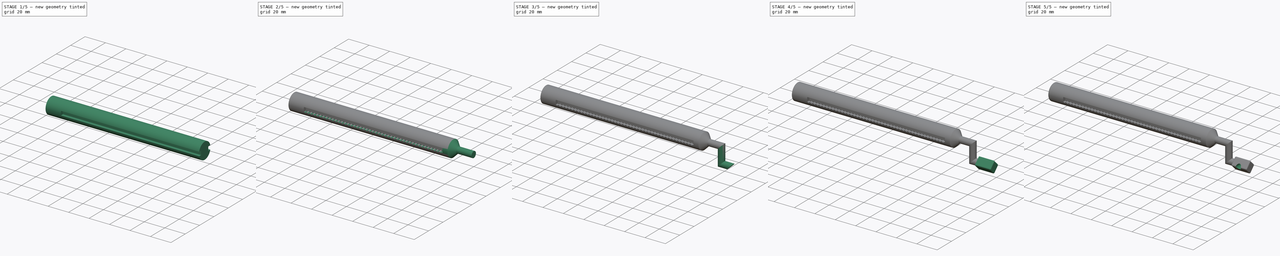
[diagram: build sequence overview — one tinted view per stage of 5, left to right]
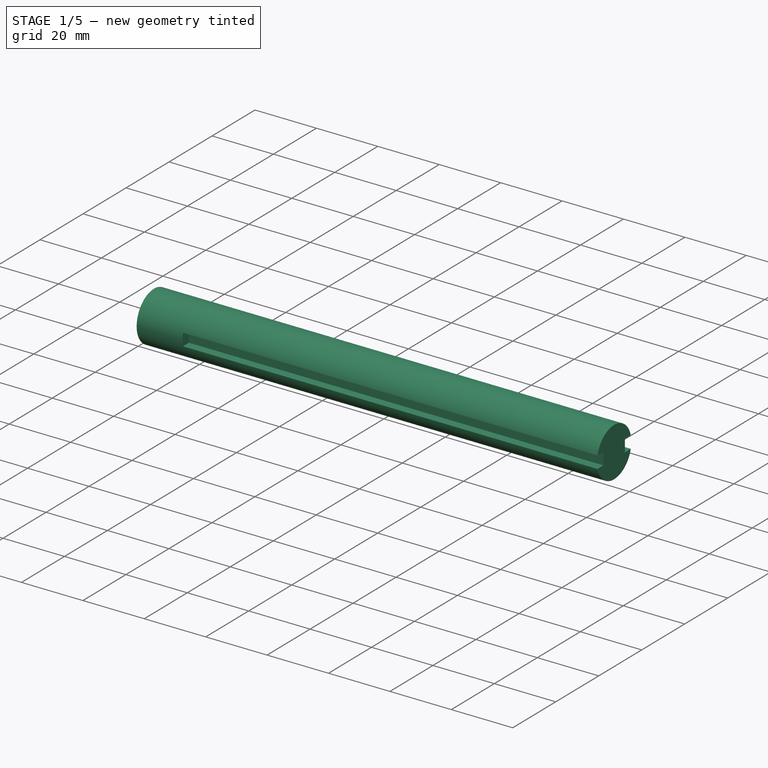
[diagram: stage 1 of 5 — iso view after this stage's code; geometry added in this stage tinted green]
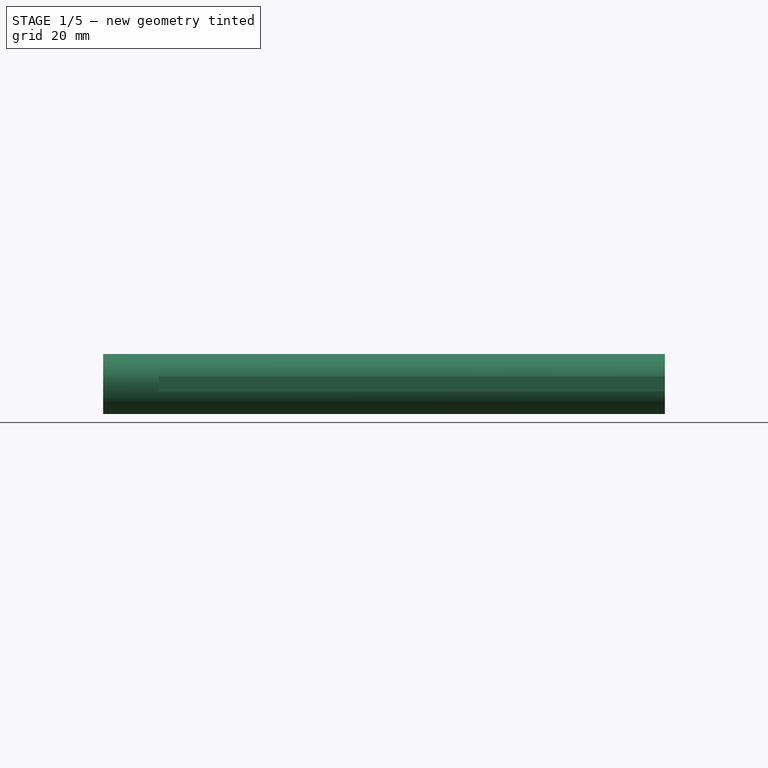
[diagram: stage 1 of 5 — front view after this stage's code; geometry added in this stage tinted green]
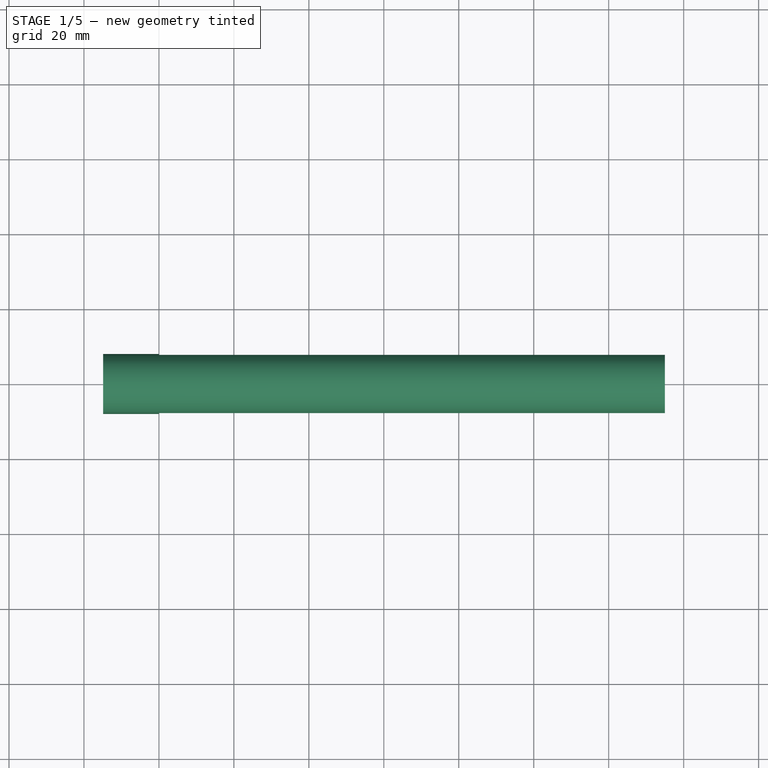
[diagram: stage 1 of 5 — top view after this stage's code; geometry added in this stage tinted green]
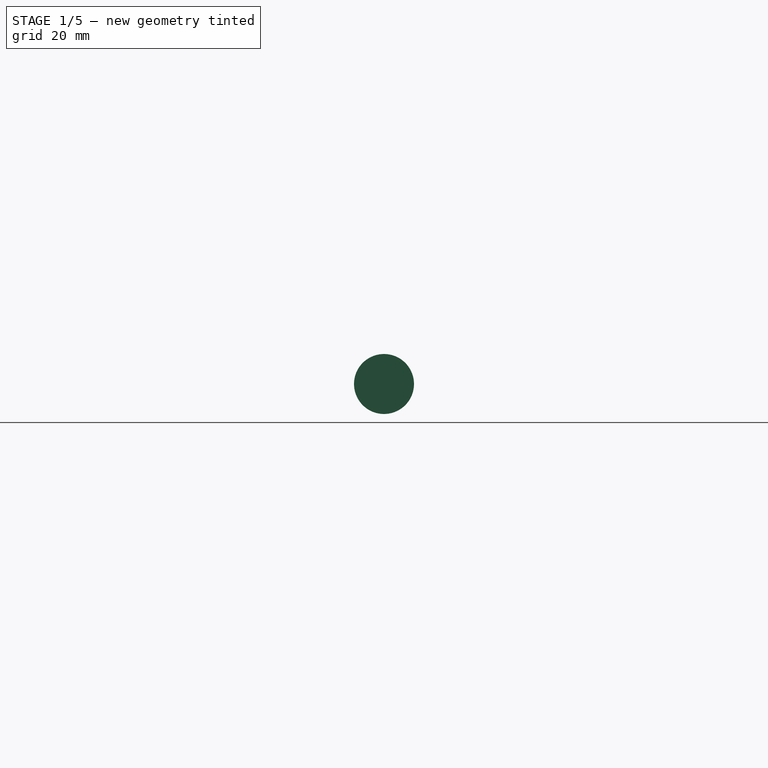
[diagram: stage 1 of 5 — right view after this stage's code; geometry added in this stage tinted green]
FCSTD DOCUMENT  (FreeCAD 1.0R38641 +468 (Git))
Label: probe-holder-shaft-03-001
License: All rights reserved
LicenseURL: http://en.wikipedia.org/wiki/All_rights_reserved
objects: Sketcher::SketchObject×9, PartDesign::Pad×9, PartDesign::Pocket×4, PartDesign::Fillet×3, PartDesign::Chamfer×1, PartDesign::Body×1
note: 70 computed .brp shape members not serialized (recipe doc carries the construction recipe); baked Part::Feature solids carry a one-line shape summary decoded from their .brp

FEATURE [Sketcher::SketchObject] Sketch
  ArcFitTolerance = 1e-06
  AttachmentSupport = -> [YZ_Plane]
  FullyConstrained = true
  MakeInternals = false
  MapMode = 5
  Placement = pos=(0,0,0) rot=(0.57735,0.57735,0.57735;2.0944rad)
  sketch-geometry (1):
    g0: Circle CenterX=0 CenterY=0 CenterZ=0 NormalX=0 NormalY=0 NormalZ=1 AngleXU=0 Radius=8
  constraints (2):
    c: Coincident(g0,g-1)
    c: Diameter(g0) = 16
FEATURE [PartDesign::Pad] Pad
  Direction = (1,0,0)
  Length = 135
  Length2 = 10
  Placement = pos=(0,0,0) rot=(1,1,1;2.0944rad)
  Profile = -> Sketch
  ReferenceAxis = -> Sketch [N_Axis]
  Refine = true
  Suppressed = false
  Type = 0
FEATURE [Sketcher::SketchObject] Sketch001
  ArcFitTolerance = 1e-06
  FullyConstrained = true
  MakeInternals = false
  MapMode = 5
  Placement = pos=(135,-3e-14,1.5e-14) rot=(0.57735,0.57735,0.57735;2.0944rad)
  sketch-geometry (8):
    g0: LineSegment StartX=-8 StartY=2 StartZ=0 EndX=-8 EndY=-2 EndZ=0
    g1: LineSegment StartX=-8 StartY=-2 StartZ=0 EndX=-5 EndY=-2 EndZ=0
    g2: LineSegment StartX=-5 StartY=-2 StartZ=0 EndX=-5 EndY=2 EndZ=0
    g3: LineSegment StartX=-5 StartY=2 StartZ=0 EndX=-8 EndY=2 EndZ=0
    g4: LineSegment StartX=5 StartY=2 StartZ=0 EndX=5 EndY=-2 EndZ=0
    g5: LineSegment StartX=5 StartY=-2 StartZ=0 EndX=8 EndY=-2 EndZ=0
    g6: LineSegment StartX=8 StartY=-2 StartZ=0 EndX=8 EndY=2 EndZ=0
    g7: LineSegment StartX=8 StartY=2 StartZ=0 EndX=5 EndY=2 EndZ=0
  constraints (23):
    c: Vertical(g2)
    c: Horizontal(g1)
    c: Horizontal(g3)
    c: Horizontal(g7)
    c: Horizontal(g5)
    c: Vertical(g4)
    c: DistanceX(g0) = -8
    c: DistanceY(g0,g0) = 4
    c: Symmetric(g0,g0,g-1)
    c: Symmetric(g6,g5,g-1)
    c: DistanceX(g5) = 8
    c: DistanceY(g6,g6) = 4
    c: Coincident(g6,g5)
    c: Coincident(g5,g4)
    c: DistanceX(g5,g5) = 3
    c: Coincident(g4,g7)
    c: Coincident(g7,g6)
    c: Coincident(g3,g0)
    c: Coincident(g2,g3)
    c: DistanceX(g3,g3) = 3
    c: DistanceY(g2,g2) = 4
    c: Coincident(g0,g1)
    c: DistanceX(g1,g1) = 3
FEATURE [PartDesign::Pocket] Pocket
  BaseFeature = -> Pad
  Direction = (-1,0,0)
  Length = 5
  Length2 = 5
  Placement = pos=(0,0,0) rot=(1,1,1;2.0944rad)
  Profile = -> Sketch001
  ReferenceAxis = -> Sketch001 [N_Axis]
  Refine = true
  Suppressed = false
  Type = 1
FEATURE [Sketcher::SketchObject] Sketch002
  ArcFitTolerance = 1e-06
  FullyConstrained = true
  MakeInternals = false
  MapMode = 5
  Placement = pos=(0,0,0) rot=(0.57735,0.57735,-0.57735;4.18879rad)
  sketch-geometry (1):
    g0: Circle CenterX=0 CenterY=0 CenterZ=0 NormalX=0 NormalY=0 NormalZ=1 AngleXU=0 Radius=8
  constraints (2):
    c: Diameter(g0) = 16
    c: Coincident(g0,g-1)
FEATURE [PartDesign::Pad] Pad001
  BaseFeature = -> Pocket
  Direction = (-1,0,0)
  Length = 14.9
  Length2 = 10
  Placement = pos=(0,0,0) rot=(1,1,1;2.0944rad)
  Profile = -> Sketch002
  ReferenceAxis = -> Sketch002 [N_Axis]
  Refine = true
  Suppressed = false
  Type = 0
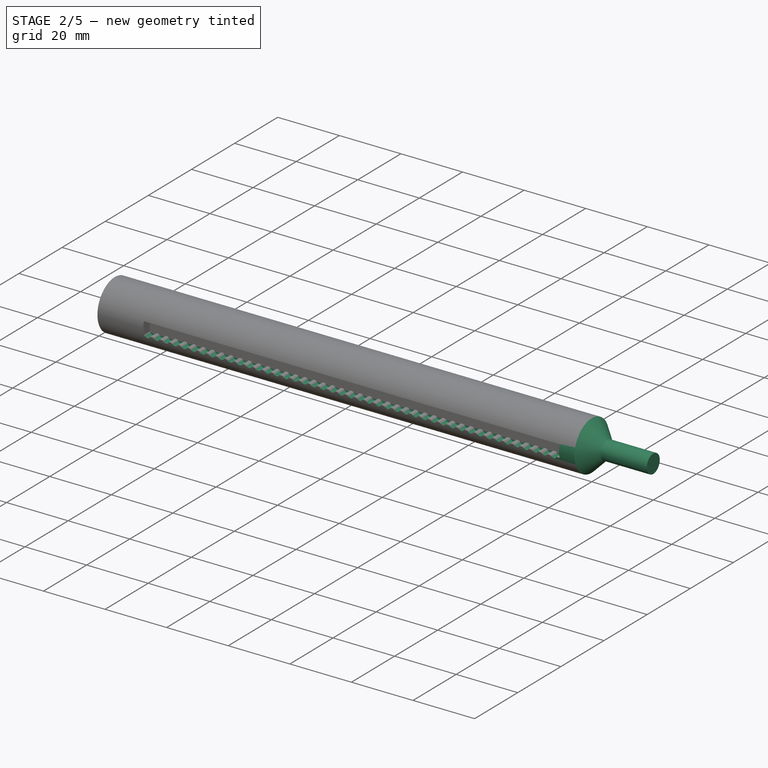
[diagram: stage 2 of 5 — iso view after this stage's code; geometry added in this stage tinted green]
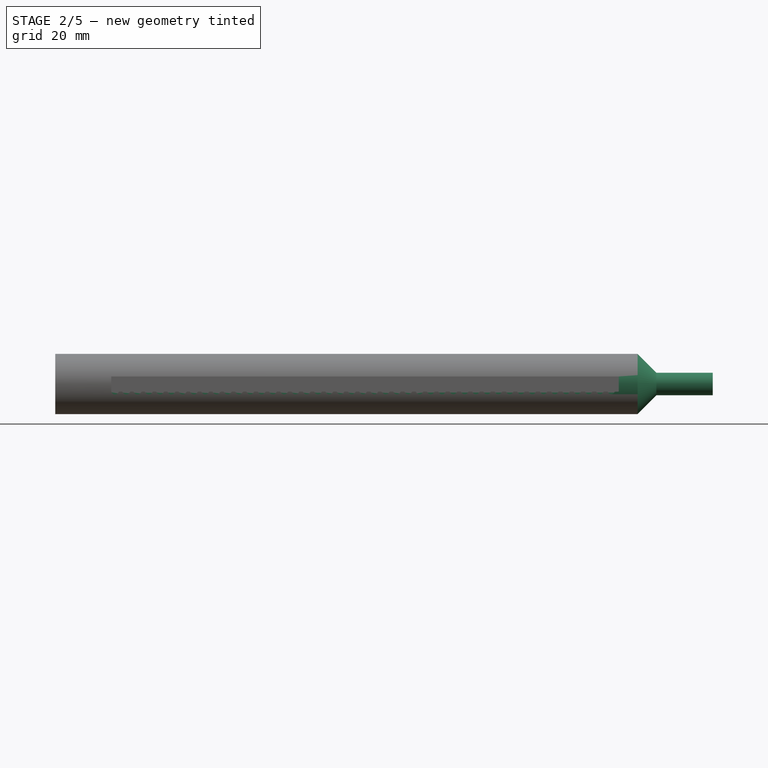
[diagram: stage 2 of 5 — front view after this stage's code; geometry added in this stage tinted green]
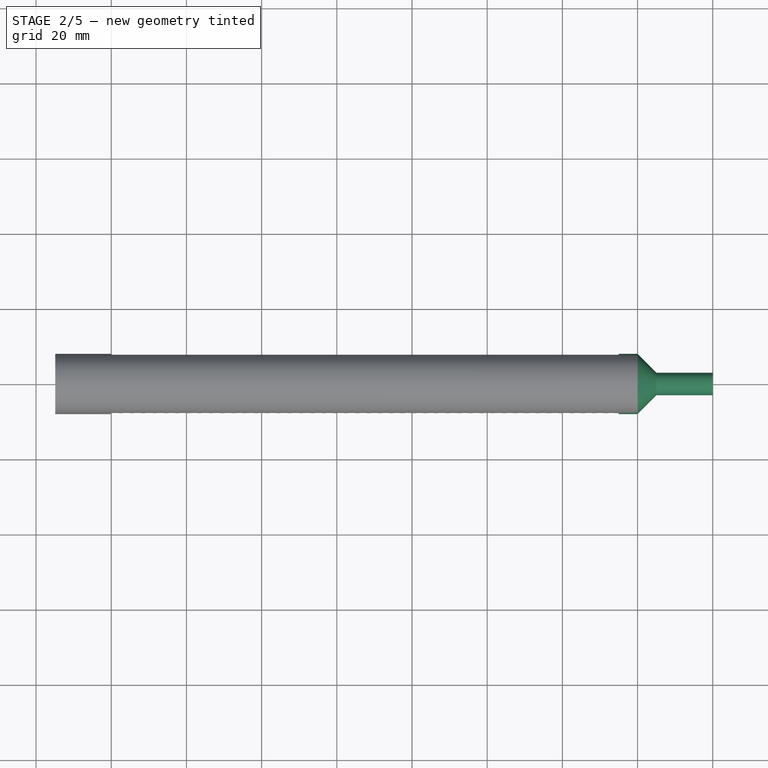
[diagram: stage 2 of 5 — top view after this stage's code; geometry added in this stage tinted green]
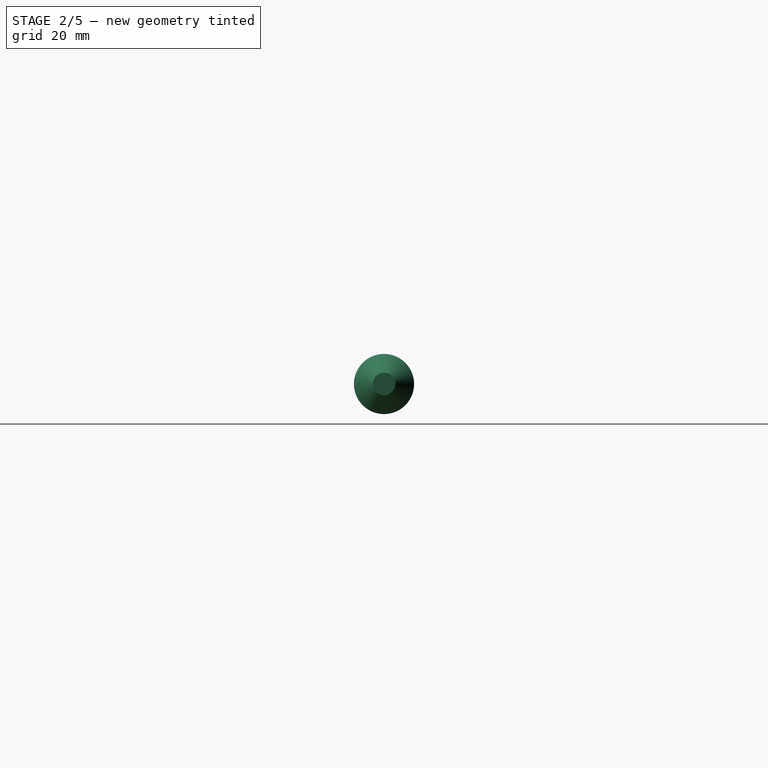
[diagram: stage 2 of 5 — right view after this stage's code; geometry added in this stage tinted green]
FEATURE [Sketcher::SketchObject] Sketch003
  ArcFitTolerance = 1e-06
  FullyConstrained = true
  MakeInternals = false
  MapMode = 5
  Placement = pos=(135,-8.99e-14,4.5e-14) rot=(0.57735,0.57735,0.57735;2.0944rad)
  sketch-geometry (1):
    g0: Circle CenterX=0 CenterY=0 CenterZ=0 NormalX=0 NormalY=0 NormalZ=1 AngleXU=0 Radius=8
  constraints (2):
    c: Coincident(g0,g-1)
    c: Diameter(g0) = 16
FEATURE [PartDesign::Pad] Pad002
  BaseFeature = -> Pad001
  Direction = (1,0,0)
  Length = 10
  Length2 = 10
  Placement = pos=(0,0,0) rot=(1,1,1;2.0944rad)
  Profile = -> Sketch003
  ReferenceAxis = -> Sketch003 [N_Axis]
  Refine = true
  Suppressed = false
  Type = 0
FEATURE [PartDesign::Chamfer] Chamfer
  Angle = 45
  Base = -> Pad002 [Face8]
  BaseFeature = -> Pad002
  ChamferType = 0
  FlipDirection = false
  Placement = pos=(0,0,0) rot=(1,1,1;2.0944rad)
  Refine = true
  Size = 5
  Size2 = 1
  SupportTransform = false
  Suppressed = false
  UseAllEdges = false
FEATURE [Sketcher::SketchObject] Sketch004
  ArcFitTolerance = 1e-06
  FullyConstrained = false
  MakeInternals = false
  MapMode = 5
  Placement = pos=(-1.1e-15,-5,5.6e-15) rot=(0.57735,0.57735,-0.57735;2.0944rad)
  sketch-geometry (92):
    g0: ArcOfCircle CenterX=1.8 CenterY=1 CenterZ=0 NormalX=0 NormalY=0 NormalZ=1 AngleXU=0 Radius=1 StartAngle=4.71239 EndAngle=7.33038
    g1: ArcOfCircle CenterX=1.8 CenterY=4 CenterZ=0 NormalX=0 NormalY=0 NormalZ=1 AngleXU=0 Radius=1 StartAngle=5.23599 EndAngle=7.33038
    g2: ArcOfCircle CenterX=2.61965 CenterY=2.5 CenterZ=0 NormalX=0 NormalY=0 NormalZ=1 AngleXU=0 Radius=0.71 StartAngle=2.0378 EndAngle=4.24539
    g3: ArcOfCircle CenterX=2.66662 CenterY=5.50103 CenterZ=0 NormalX=0 NormalY=0 NormalZ=1 AngleXU=0 Radius=0.733235 StartAngle=2.0944 EndAngle=4.18879
    g4: ArcOfCircle CenterX=1.8 CenterY=7 CenterZ=0 NormalX=0 NormalY=0 NormalZ=1 AngleXU=0 Radius=0.998224 StartAngle=5.23701 EndAngle=7.32936
    g5: ArcOfCircle CenterX=2.66662 CenterY=8.50103 CenterZ=0 NormalX=0 NormalY=0 NormalZ=1 AngleXU=0 Radius=0.735012 StartAngle=2.093 EndAngle=4.19019
    g6: ArcOfCircle CenterX=1.8 CenterY=10 CenterZ=0 NormalX=0 NormalY=0 NormalZ=1 AngleXU=0 Radius=0.99645 StartAngle=5.23805 EndAngle=7.32832
    g7: ArcOfCircle CenterX=2.66662 CenterY=11.501 CenterZ=0 NormalX=0 NormalY=0 NormalZ=1 AngleXU=0 Radius=0.73679 StartAngle=2.09161 EndAngle=4.19157
    g8: ArcOfCircle CenterX=1.8 CenterY=13 CenterZ=0 NormalX=0 NormalY=0 NormalZ=1 AngleXU=0 Radius=0.994677 StartAngle=5.23908 EndAngle=7.32729
    g9: ArcOfCircle CenterX=2.66662 CenterY=14.501 CenterZ=0 NormalX=0 NormalY=0 NormalZ=1 AngleXU=0 Radius=0.738569 StartAngle=2.09023 EndAngle=4.19296
    g10: ArcOfCircle CenterX=1.8 CenterY=16 CenterZ=0 NormalX=0 NormalY=0 NormalZ=1 AngleXU=0 Radius=0.992904 StartAngle=5.24012 EndAngle=7.32625
    g11: ArcOfCircle CenterX=2.66662 CenterY=17.501 CenterZ=0 NormalX=0 NormalY=0 NormalZ=1 AngleXU=0 Radius=0.74035 StartAngle=2.08885 EndAngle=4.19433
    g12: ArcOfCircle CenterX=1.8 CenterY=19 CenterZ=0 NormalX=0 NormalY=0 NormalZ=1 AngleXU=0 Radius=0.991133 StartAngle=5.24116 EndAngle=7.32521
    g13: ArcOfCircle CenterX=2.66662 CenterY=20.501 CenterZ=0 NormalX=0 NormalY=0 NormalZ=1 AngleXU=0 Radius=0.742133 StartAngle=2.08749 EndAngle=4.1957
    g14: ArcOfCircle CenterX=1.8 CenterY=22 CenterZ=0 NormalX=0 NormalY=0 NormalZ=1 AngleXU=0 Radius=0.989363 StartAngle=5.24221 EndAngle=7.32416
    g15: ArcOfCircle CenterX=2.66662 CenterY=23.501 CenterZ=0 NormalX=0 NormalY=0 NormalZ=1 AngleXU=0 Radius=0.743917 StartAngle=2.08612 EndAngle=4.19706
    g16: ArcOfCircle CenterX=1.8 CenterY=25 CenterZ=0 NormalX=0 NormalY=0 NormalZ=1 AngleXU=0 Radius=0.987594 StartAngle=5.24326 EndAngle=7.32311
    g17: ArcOfCircle CenterX=2.66662 CenterY=26.501 CenterZ=0 NormalX=0 NormalY=0 NormalZ=1 AngleXU=0 Radius=0.745702 StartAngle=2.08477 EndAngle=4.19842
    g18: ArcOfCircle CenterX=1.8 CenterY=28 CenterZ=0 NormalX=0 NormalY=0 NormalZ=1 AngleXU=0 Radius=0.985826 StartAngle=5.24431 EndAngle=7.32206
    g19: ArcOfCircle CenterX=2.66662 CenterY=29.501 CenterZ=0 NormalX=0 NormalY=0 NormalZ=1 AngleXU=0 Radius=0.747488 StartAngle=2.08342 EndAngle=4.19976
    g20: ArcOfCircle CenterX=1.8 CenterY=31 CenterZ=0 NormalX=0 NormalY=0 NormalZ=1 AngleXU=0 Radius=0.984059 StartAngle=5.24537 EndAngle=7.321
    g21: ArcOfCircle CenterX=2.66662 CenterY=32.501 CenterZ=0 NormalX=0 NormalY=0 NormalZ=1 AngleXU=0 Radius=0.749276 StartAngle=2.08208 EndAngle=4.20111
    g22: ArcOfCircle CenterX=1.8 CenterY=34 CenterZ=0 NormalX=0 NormalY=0 NormalZ=1 AngleXU=0 Radius=0.982293 StartAngle=5.24643 EndAngle=7.31994
    g23: ArcOfCircle CenterX=2.66662 CenterY=35.501 CenterZ=0 NormalX=0 NormalY=0 NormalZ=1 AngleXU=0 Radius=0.751065 StartAngle=2.08074 EndAngle=4.20244
    g24: ArcOfCircle CenterX=1.8 CenterY=37 CenterZ=0 NormalX=0 NormalY=0 NormalZ=1 AngleXU=0 Radius=0.980528 StartAngle=5.24749 EndAngle=7.31888
    g25: ArcOfCircle CenterX=2.66662 CenterY=38.501 CenterZ=0 NormalX=0 NormalY=0 NormalZ=1 AngleXU=0 Radius=0.752856 StartAngle=2.07941 EndAngle=4.20377
    g26: ArcOfCircle CenterX=1.8 CenterY=40 CenterZ=0 NormalX=0 NormalY=0 NormalZ=1 AngleXU=0 Radius=0.978765 StartAngle=5.24856 EndAngle=7.31781
    g27: ArcOfCircle CenterX=2.66662 CenterY=41.501 CenterZ=0 NormalX=0 NormalY=0 NormalZ=1 AngleXU=0 Radius=0.754648 StartAngle=2.07809 EndAngle=4.2051
    g28: ArcOfCircle CenterX=1.8 CenterY=43 CenterZ=0 NormalX=0 NormalY=0 NormalZ=1 AngleXU=0 Radius=0.977002 StartAngle=5.24963 EndAngle=7.31674
    g29: ArcOfCircle CenterX=2.66662 CenterY=44.501 CenterZ=0 NormalX=0 NormalY=0 NormalZ=1 AngleXU=0 Radius=0.756441 StartAngle=2.07677 EndAngle=4.20641
    g30: ArcOfCircle CenterX=1.8 CenterY=46 CenterZ=0 NormalX=0 NormalY=0 NormalZ=1 AngleXU=0 Radius=0.975241 StartAngle=5.25071 EndAngle=7.31566
    g31: ArcOfCircle CenterX=2.66662 CenterY=47.501 CenterZ=0 NormalX=0 NormalY=0 NormalZ=1 AngleXU=0 Radius=0.758235 StartAngle=2.07546 EndAngle=4.20772
    g32: ArcOfCircle CenterX=1.8 CenterY=49 CenterZ=0 NormalX=0 NormalY=0 NormalZ=1 AngleXU=0 Radius=0.973481 StartAngle=5.25179 EndAngle=7.31458
    g33: ArcOfCircle CenterX=2.66662 CenterY=50.501 CenterZ=0 NormalX=0 NormalY=0 NormalZ=1 AngleXU=0 Radius=0.760031 StartAngle=2.07416 EndAngle=4.20903
    g34: ArcOfCircle CenterX=1.8 CenterY=52 CenterZ=0 NormalX=0 NormalY=0 NormalZ=1 AngleXU=0 Radius=0.971722 StartAngle=5.25287 EndAngle=7.3135
    g35: ArcOfCircle CenterX=2.66662 CenterY=53.501 CenterZ=0 NormalX=0 NormalY=0 NormalZ=1 AngleXU=0 Radius=0.761828 StartAngle=2.07286 EndAngle=4.21033
    g36: ArcOfCircle CenterX=1.8 CenterY=55 CenterZ=0 NormalX=0 NormalY=0 NormalZ=1 AngleXU=0 Radius=0.969964 StartAngle=5.25396 EndAngle=7.31241
    g37: ArcOfCircle CenterX=2.66662 CenterY=56.501 CenterZ=0 NormalX=0 NormalY=0 NormalZ=1 AngleXU=0 Radius=0.763627 StartAngle=2.07157 EndAngle=4.21162
    g38: ArcOfCircle CenterX=1.8 CenterY=58 CenterZ=0 NormalX=0 NormalY=0 NormalZ=1 AngleXU=0 Radius=0.968207 StartAngle=5.25505 EndAngle=7.31132
    g39: ArcOfCircle CenterX=2.66662 CenterY=59.501 CenterZ=0 NormalX=0 NormalY=0 NormalZ=1 AngleXU=0 Radius=0.765426 StartAngle=2.07028 EndAngle=4.21291
    g40: ArcOfCircle CenterX=1.8 CenterY=61 CenterZ=0 NormalX=0 NormalY=0 NormalZ=1 AngleXU=0 Radius=0.966451 StartAngle=5.25615 EndAngle=7.31022
    g41: ArcOfCircle CenterX=2.66662 CenterY=62.501 CenterZ=0 NormalX=0 NormalY=0 NormalZ=1 AngleXU=0 Radius=0.767227 StartAngle=2.069 EndAngle=4.21419
    g42: ArcOfCircle CenterX=1.8 CenterY=64 CenterZ=0 NormalX=0 NormalY=0 NormalZ=1 AngleXU=0 Radius=0.964697 StartAngle=5.25725 EndAngle=7.30912
    g43: ArcOfCircle CenterX=2.66662 CenterY=65.501 CenterZ=0 NormalX=0 NormalY=0 NormalZ=1 AngleXU=0 Radius=0.769029 StartAngle=2.06772 EndAngle=4.21546
    g44: ArcOfCircle CenterX=1.8 CenterY=67 CenterZ=0 NormalX=0 NormalY=0 NormalZ=1 AngleXU=0 Radius=0.962944 StartAngle=5.25835 EndAngle=7.30802
    g45: ArcOfCircle CenterX=2.66662 CenterY=68.501 CenterZ=0 NormalX=0 NormalY=0 NormalZ=1 AngleXU=0 Radius=0.770833 StartAngle=2.06646 EndAngle=4.21673
    g46: ArcOfCircle CenterX=1.8 CenterY=70 CenterZ=0 NormalX=0 NormalY=0 NormalZ=1 AngleXU=0 Radius=0.961192 StartAngle=5.25946 EndAngle=7.30691
    g47: ArcOfCircle CenterX=2.66662 CenterY=71.501 CenterZ=0 NormalX=0 NormalY=0 NormalZ=1 AngleXU=0 Radius=0.772637 StartAngle=2.06519 EndAngle=4.21799
    g48: ArcOfCircle CenterX=1.8 CenterY=73 CenterZ=0 NormalX=0 NormalY=0 NormalZ=1 AngleXU=0 Radius=0.959441 StartAngle=5.26057 EndAngle=7.3058
    g49: ArcOfCircle CenterX=2.66662 CenterY=74.501 CenterZ=0 NormalX=0 NormalY=0 NormalZ=1 AngleXU=0 Radius=0.774443 StartAngle=2.06394 EndAngle=4.21925
    g50: ArcOfCircle CenterX=1.8 CenterY=76 CenterZ=0 NormalX=0 NormalY=0 NormalZ=1 AngleXU=0 Radius=0.957691 StartAngle=5.26169 EndAngle=7.30468
    g51: ArcOfCircle CenterX=2.66662 CenterY=77.501 CenterZ=0 NormalX=0 NormalY=0 NormalZ=1 AngleXU=0 Radius=0.77625 StartAngle=2.06269 EndAngle=4.2205
    g52: ArcOfCircle CenterX=1.8 CenterY=79 CenterZ=0 NormalX=0 NormalY=0 NormalZ=1 AngleXU=0 Radius=0.955942 StartAngle=5.26281 EndAngle=7.30356
    g53: ArcOfCircle CenterX=2.66662 CenterY=80.501 CenterZ=0 NormalX=0 NormalY=0 NormalZ=1 AngleXU=0 Radius=0.778059 StartAngle=2.06144 EndAngle=4.22174
    g54: ArcOfCircle CenterX=1.8 CenterY=82 CenterZ=0 NormalX=0 NormalY=0 NormalZ=1 AngleXU=0 Radius=0.954195 StartAngle=5.26393 EndAngle=7.30244
    g55: ArcOfCircle CenterX=2.66662 CenterY=83.501 CenterZ=0 NormalX=0 NormalY=0 NormalZ=1 AngleXU=0 Radius=0.779868 StartAngle=2.0602 EndAngle=4.22298
    g56: ArcOfCircle CenterX=1.8 CenterY=85 CenterZ=0 NormalX=0 NormalY=0 NormalZ=1 AngleXU=0 Radius=0.952449 StartAngle=5.26506 EndAngle=7.30131
    g57: ArcOfCircle CenterX=2.66662 CenterY=86.501 CenterZ=0 NormalX=0 NormalY=0 NormalZ=1 AngleXU=0 Radius=0.781679 StartAngle=2.05897 EndAngle=4.22422
    g58: ArcOfCircle CenterX=1.8 CenterY=88 CenterZ=0 NormalX=0 NormalY=0 NormalZ=1 AngleXU=0 Radius=0.950704 StartAngle=5.26619 EndAngle=7.30018
    g59: ArcOfCircle CenterX=2.66662 CenterY=89.501 CenterZ=0 NormalX=0 NormalY=0 NormalZ=1 AngleXU=0 Radius=0.783491 StartAngle=2.05774 EndAngle=4.22544
    g60: ArcOfCircle CenterX=1.8 CenterY=91 CenterZ=0 NormalX=0 NormalY=0 NormalZ=1 AngleXU=0 Radius=0.948961 StartAngle=5.26733 EndAngle=7.29904
    g61: ArcOfCircle CenterX=2.66662 CenterY=92.501 CenterZ=0 NormalX=0 NormalY=0 NormalZ=1 AngleXU=0 Radius=0.785304 StartAngle=2.05652 EndAngle=4.22667
    g62: ArcOfCircle CenterX=1.8 CenterY=94 CenterZ=0 NormalX=0 NormalY=0 NormalZ=1 AngleXU=0 Radius=0.947218 StartAngle=5.26847 EndAngle=7.2979
    g63: ArcOfCircle CenterX=2.66662 CenterY=95.501 CenterZ=0 NormalX=0 NormalY=0 NormalZ=1 AngleXU=0 Radius=0.787118 StartAngle=2.0553 EndAngle=4.22788
    g64: ArcOfCircle CenterX=1.8 CenterY=97 CenterZ=0 NormalX=0 NormalY=0 NormalZ=1 AngleXU=0 Radius=0.945477 StartAngle=5.26961 EndAngle=7.29676
    g65: ArcOfCircle CenterX=2.66662 CenterY=98.501 CenterZ=0 NormalX=0 NormalY=0 NormalZ=1 AngleXU=0 Radius=0.788933 StartAngle=2.05409 EndAngle=4.22909
    g66: ArcOfCircle CenterX=1.8 CenterY=100 CenterZ=0 NormalX=0 NormalY=0 NormalZ=1 AngleXU=0 Radius=0.943737 StartAngle=5.27076 EndAngle=7.29561
    g67: ArcOfCircle CenterX=2.66662 CenterY=101.501 CenterZ=0 NormalX=0 NormalY=0 NormalZ=1 AngleXU=0 Radius=0.79075 StartAngle=2.05289 EndAngle=4.2303
    g68: ArcOfCircle CenterX=1.8 CenterY=103 CenterZ=0 NormalX=0 NormalY=0 NormalZ=1 AngleXU=0 Radius=0.941998 StartAngle=5.27192 EndAngle=7.29445
    g69: ArcOfCircle CenterX=2.66662 CenterY=104.501 CenterZ=0 NormalX=0 NormalY=0 NormalZ=1 AngleXU=0 Radius=0.792567 StartAngle=2.05169 EndAngle=4.2315
    g70: ArcOfCircle CenterX=1.8 CenterY=106 CenterZ=0 NormalX=0 NormalY=0 NormalZ=1 AngleXU=0 Radius=0.940261 StartAngle=5.27308 EndAngle=7.2933
    g71: ArcOfCircle CenterX=2.66662 CenterY=107.501 CenterZ=0 NormalX=0 NormalY=0 NormalZ=1 AngleXU=0 Radius=0.794386 StartAngle=2.05049 EndAngle=4.23269
    g72: ArcOfCircle CenterX=1.8 CenterY=109 CenterZ=0 NormalX=0 NormalY=0 NormalZ=1 AngleXU=0 Radius=0.938525 StartAngle=5.27424 EndAngle=7.29213
    g73: ArcOfCircle CenterX=2.66662 CenterY=110.501 CenterZ=0 NormalX=0 NormalY=0 NormalZ=1 AngleXU=0 Radius=0.796206 StartAngle=2.0493 EndAngle=4.23388
    g74: ArcOfCircle CenterX=1.8 CenterY=112 CenterZ=0 NormalX=0 NormalY=0 NormalZ=1 AngleXU=0 Radius=0.93679 StartAngle=5.2754 EndAngle=7.29097
    g75: ArcOfCircle CenterX=2.66662 CenterY=113.501 CenterZ=0 NormalX=0 NormalY=0 NormalZ=1 AngleXU=0 Radius=0.798027 StartAngle=2.04812 EndAngle=4.23506
    g76: ArcOfCircle CenterX=1.8 CenterY=115 CenterZ=0 NormalX=0 NormalY=0 NormalZ=1 AngleXU=0 Radius=0.935056 StartAngle=5.27657 EndAngle=7.2898
    g77: ArcOfCircle CenterX=2.66662 CenterY=116.501 CenterZ=0 NormalX=0 NormalY=0 NormalZ=1 AngleXU=0 Radius=0.799849 StartAngle=2.04694 EndAngle=4.23624
    g78: ArcOfCircle CenterX=1.8 CenterY=118 CenterZ=0 NormalX=0 NormalY=0 NormalZ=1 AngleXU=0 Radius=0.933324 StartAngle=5.27775 EndAngle=7.28862
    g79: ArcOfCircle CenterX=2.66662 CenterY=119.501 CenterZ=0 NormalX=0 NormalY=0 NormalZ=1 AngleXU=0 Radius=0.801672 StartAngle=2.04577 EndAngle=4.23741
    g80: ArcOfCircle CenterX=1.8 CenterY=121 CenterZ=0 NormalX=0 NormalY=0 NormalZ=1 AngleXU=0 Radius=0.931593 StartAngle=5.27893 EndAngle=7.28744
    g81: ArcOfCircle CenterX=2.66662 CenterY=122.501 CenterZ=0 NormalX=0 NormalY=0 NormalZ=1 AngleXU=0 Radius=0.803497 StartAngle=2.0446 EndAngle=4.23858
    g82: ArcOfCircle CenterX=1.8 CenterY=124 CenterZ=0 NormalX=0 NormalY=0 NormalZ=1 AngleXU=0 Radius=0.929863 StartAngle=5.28011 EndAngle=7.28626
    g83: ArcOfCircle CenterX=2.66662 CenterY=125.501 CenterZ=0 NormalX=0 NormalY=0 NormalZ=1 AngleXU=0 Radius=0.805322 StartAngle=2.04344 EndAngle=4.23974
    g84: ArcOfCircle CenterX=1.8 CenterY=127 CenterZ=0 NormalX=0 NormalY=0 NormalZ=1 AngleXU=0 Radius=0.928135 StartAngle=5.2813 EndAngle=7.28507
    g85: ArcOfCircle CenterX=2.66662 CenterY=128.501 CenterZ=0 NormalX=0 NormalY=0 NormalZ=1 AngleXU=0 Radius=0.807149 StartAngle=2.04229 EndAngle=4.2409
    g86: ArcOfCircle CenterX=1.8 CenterY=130 CenterZ=0 NormalX=0 NormalY=0 NormalZ=1 AngleXU=0 Radius=0.926407 StartAngle=5.28249 EndAngle=7.28388
    g87: ArcOfCircle CenterX=2.66662 CenterY=131.501 CenterZ=0 NormalX=0 NormalY=0 NormalZ=1 AngleXU=0 Radius=0.808976 StartAngle=2.04113 EndAngle=4.24205
    g88: ArcOfCircle CenterX=1.8 CenterY=133 CenterZ=0 NormalX=0 NormalY=0 NormalZ=1 AngleXU=0 Radius=0.924682 StartAngle=5.28369 EndAngle=7.28268
    g89: ArcOfCircle CenterX=2.66662 CenterY=134.501 CenterZ=0 NormalX=0 NormalY=0 NormalZ=1 AngleXU=0 Radius=0.810805 StartAngle=2.47869 EndAngle=4.2432
    g90: LineSegment StartX=1.8 StartY=1.81336e-08 StartZ=0 EndX=1.8 EndY=135 EndZ=0
    g91: LineSegment StartX=1.8 StartY=135 StartZ=0 EndX=2.02753 EndY=135 EndZ=0
  constraints (361):
    c: Radius(g0) = 1
    c: Radius(g1) = 1
    c: DistanceY(g0,g1) = 3
    c: DistanceX(g0,g0) = 0.5
    c: Vertical(g1,g0)
    c: Vertical(g1,g0)
    c: Coincident(g2,g1)
    c: Coincident(g2,g0)
    c: Radius(g2) = 0.71
    c: Tangent(g1,g3) = 1.5708
    c: DistanceY(g1,g3) = 1.27
    c: Vertical(g1,g1)
    c: Vertical(g3,g1)
    c: DistanceX(g4,g4) = -0.5
    c: Coincident(g4,g3)
    c: Vertical(g4,g3)
    c: Coincident(g5,g4)
    c: Vertical(g3,g5)
    c: DistanceY(g3,g5) = 3
    c: DistanceY(g1,g4) = 3
    c: Vertical(g4,g5)
    c: Vertical(g6,g4)
    c: DistanceY(g4,g6) = 3
    c: Coincident(g6,g5)
    c: DistanceY(g5,g7) = 3
    c: Vertical(g5,g6)
    c: Coincident(g6,g7)
    c: Vertical(g7,g5)
    c: Vertical(g5,g7)
    c: Vertical(g8,g6)
    c: DistanceY(g6,g8) = 3
    c: Coincident(g7,g8)
    c: Vertical(g7,g9)
    c: Vertical(g8,g7)
    c: DistanceY(g7,g9) = 3
    c: Coincident(g9,g8)
    c: Vertical(g8,g9)
    c: DistanceY(g8,g10) = 3
    c: Vertical(g10,g8)
    c: Coincident(g10,g9)
    c: Vertical(g10,g9)
    c: Vertical(g9,g11)
    c: DistanceY(g9,g11) = 3
    c: Vertical(g10,g11)
    c: Coincident(g11,g10)
    c: DistanceY(g10,g12) = 3
    c: Vertical(g12,g10)
    c: Coincident(g11,g12)
    c: Vertical(g12,g11)
    c: Vertical(g11,g13)
    c: DistanceY(g11,g13) = 3
    c: Vertical(g13,g12)
    c: Coincident(g12,g13)
    c: Vertical(g14,g12)
    c: DistanceY(g12,g14) = 3
    c: Coincident(g13,g14)
    c: Vertical(g14,g13)
    c: Vertical(g15,g13)
    c: DistanceY(g13,g15) = 3
    c: Coincident(g15,g14)
    c: Vertical(g15,g14)
    c: Vertical(g16,g14)
    c: DistanceY(g14,g16) = 3
    c: Coincident(g15,g16)
    c: Vertical(g15,g16)
    c: Vertical(g17,g15)
    c: DistanceY(g15,g17) = 3
    c: Coincident(g17,g16)
    c: Vertical(g17,g16)
    c: Vertical(g16,g18)
    c: DistanceY(g16,g18) = 3
    c: Coincident(g17,g18)
    c: Vertical(g18,g17)
    c: Vertical(g19,g17)
    c: DistanceY(g17,g19) = 3
    c: Coincident(g18,g19)
    c: Vertical(g19,g18)
    c: Vertical(g20,g18)
    c: DistanceY(g18,g20) = 3
    c: Coincident(g19,g20)
    c: Vertical(g19,g20)
    c: Vertical(g21,g19)
    c: DistanceY(g19,g21) = 3
    c: Coincident(g21,g20)
    c: Vertical(g21,g20)
    c: Vertical(g22,g20)
    c: DistanceY(g20,g22) = 3
    c: Coincident(g21,g22)
    c: Vertical(g22,g21)
    c: Vertical(g23,g21)
    c: DistanceY(g21,g23) = 3
    c: Coincident(g22,g23)
    c: Vertical(g22,g23)
    c: Vertical(g24,g22)
    c: DistanceY(g22,g24) = 3
    c: Coincident(g23,g24)
    c: Vertical(g23,g24)
    c: Coincident(g25,g24)
    c: Vertical(g25,g23)
    c: DistanceY(g23,g25) = 3
    c: Vertical(g24,g25)
    c: Vertical(g26,g24)
    c: DistanceY(g24,g26) = 3
    c: Coincident(g26,g25)
    c: Vertical(g26,g25)
    c: Vertical(g25,g27)
    c: DistanceY(g25,g27) = 3
    c: Coincident(g26,g27)
    c: Vertical(g27,g26)
    c: Vertical(g28,g26)
    c: Vertical(g30,g26)
    c: Vertical(g27,g29)
    c: Vertical(g27,g31)
    c: DistanceY(g27,g29) = 3
    c: DistanceY(g26,g28) = 3
    c: DistanceY(g28,g30) = 3
    c: DistanceY(g29,g31) = 3
    c: Coincident(g28,g27)
    c: Vertical(g28,g27)
    c: Coincident(g29,g28)
    c: Vertical(g29,g28)
    c: Coincident(g29,g30)
    c: Vertical(g30,g29)
    c: Coincident(g30,g31)
    c: Vertical(g30,g31)
    c: Vertical(g32,g30)
    c: Vertical(g33,g31)
    c: Vertical(g34,g32)
    c: Vertical(g35,g33)
    c: DistanceY(g30,g32) = 3
    c: DistanceY(g32,g34) = 3
    c: DistanceY(g33,g35) = 3
    c: DistanceY(g31,g33) = 3
    c: Coincident(g31,g32)
    c: Vertical(g31,g32)
    c: Vertical(g33,g31)
    c: Vertical(g35,g31)
    c: Vertical(g35,g31)
    c: Coincident(g32,g33)
    c: Coincident(g34,g33)
    c: Coincident(g35,g34)
    c: Vertical(g36,g34)
    c: Vertical(g38,g36)
    c: Vertical(g40,g38)
    c: Vertical(g42,g40)
    c: Vertical(g44,g42)
    c: DistanceY(g34,g36) = 3
    c: DistanceY(g36,g38) = 3
    c: DistanceY(g38,g40) = 3
    c: DistanceY(g40,g42) = 3
    c: DistanceY(g42,g44) = 3
    c: Coincident(g35,g36)
    c: Vertical(g35,g36)
    c: Vertical(g37,g35)
    c: DistanceY(g35,g37) = 3
    c: Vertical(g37,g35)
    c: Coincident(g36,g37)
    c: Coincident(g37,g38)
    c: DistanceY(g37,g39) = 3
    c: Vertical(g37,g39)
    c: Vertical(g41,g39)
    c: Vertical(g43,g41)
    c: Vertical(g45,g43)
    c: DistanceY(g39,g41) = 3
    c: DistanceY(g41,g43) = 3
    c: DistanceY(g43,g45) = 3
    c: Coincident(g38,g39)
    c: Vertical(g37,g38)
    c: Vertical(g39,g38)
    c: Coincident(g40,g39)
    c: Vertical(g40,g39)
    c: Coincident(g41,g40)
    c: Vertical(g41,g40)
    c: Coincident(g42,g41)
    c: Vertical(g42,g41)
    c: Coincident(g43,g42)
    c: Vertical(g43,g42)
    c: Coincident(g43,g44)
    c: Vertical(g44,g43)
    c: Coincident(g44,g45)
    c: Vertical(g45,g44)
    c: Vertical(g46,g44)
    c: Vertical(g48,g46)
    c: DistanceY(g44,g46) = 3
    c: DistanceY(g46,g48) = 3
    c: Coincident(g45,g46)
    c: Vertical(g46,g45)
    c: Coincident(g47,g46)
    c: Vertical(g45,g47)
    c: Vertical(g47,g46)
    c: Vertical(g48,g47)
    c: Vertical(g49,g47)
    c: Vertical(g50,g49)
    c: Vertical(g50,g48)
    c: Vertical(g49,g47)
    c: Vertical(g45,g51)
    c: Vertical(g52,g50)
    c: Vertical(g53,g51)
    c: DistanceY(g45,g47) = 3
    c: DistanceY(g47,g49) = 3
    c: Coincident(g47,g48)
    c: Coincident(g49,g48)
    c: DistanceY(g48,g50) = 3
    c: DistanceY(g50,g52) = 3
    c: DistanceY(g52,g54) = 3
    c: Vertical(g54,g52)
    c: Vertical(g56,g54)
    c: DistanceY(g54,g56) = 3
    c: DistanceY(g49,g51) = 3
    c: DistanceY(g51,g53) = 3
    c: DistanceY(g53,g55) = 3
    c: DistanceY(g55,g57) = 3
    c: Vertical(g55,g53)
    c: Vertical(g57,g55)
    c: Vertical(g52,g50)
    c: Vertical(g54,g52)
    c: Coincident(g49,g50)
    c: Coincident(g50,g51)
    c: Coincident(g51,g52)
    c: Vertical(g51,g50)
    c: Coincident(g52,g53)
    c: Coincident(g53,g54)
    c: Vertical(g52,g53)
    c: Vertical(g55,g54)
    c: Vertical(g56,g54)
    c: Vertical(g54,g57)
    c: Vertical(g56,g58)
    c: Vertical(g60,g58)
    c: Vertical(g62,g60)
    c: Coincident(g54,g55)
    c: Coincident(g56,g55)
    c: Coincident(g57,g56)
    c: DistanceY(g56,g58) = 3
    c: DistanceY(g58,g60) = 3
    c: DistanceY(g60,g62) = 3
    c: DistanceY(g57,g59) = 3
    c: DistanceY(g59,g61) = 3
    c: DistanceY(g61,g63) = 3
    c: Vertical(g57,g59)
    c: Vertical(g61,g59)
    c: Vertical(g63,g61)
    c: Coincident(g57,g58)
    c: Vertical(g57,g58)
    c: Vertical(g59,g58)
    c: Vertical(g61,g59)
    c: Vertical(g60,g59)
    c: Vertical(g63,g59)
    c: Vertical(g62,g60)
    c: Coincident(g58,g59)
    c: Coincident(g59,g60)
    c: Coincident(g61,g60)
    c: Coincident(g62,g61)
    c: Coincident(g63,g62)
    c: Vertical(g64,g62)
    c: Vertical(g66,g64)
    c: Vertical(g68,g66)
    c: Vertical(g70,g68)
    c: Vertical(g65,g63)
    c: Vertical(g67,g65)
    c: Vertical(g67,g69)
    c: Vertical(g71,g69)
    c: Vertical(g72,g70)
    c: Vertical(g74,g72)
    c: Vertical(g76,g74)
    c: Vertical(g78,g76)
    c: Vertical(g80,g78)
    c: Vertical(g71,g73)
    c: Vertical(g75,g73)
    c: Vertical(g75,g77)
    c: Vertical(g77,g79)
    c: Vertical(g79,g81)
    c: Vertical(g81,g83)
    c: Vertical(g82,g80)
    c: Vertical(g84,g82)
    c: Vertical(g85,g83)
    c: DistanceY(g83,g85) = 3
    c: DistanceY(g82,g84) = 3
    c: DistanceY(g80,g82) = 3
    c: DistanceY(g81,g83) = 3
    c: DistanceY(g79,g81) = 3
    c: DistanceY(g78,g80) = 3
    c: DistanceY(g77,g79) = 3
    c: DistanceY(g76,g78) = 3
    c: DistanceY(g75,g77) = 3
    c: DistanceY(g74,g76) = 3
    c: DistanceY(g72,g74) = 3
    c: DistanceY(g73,g75) = 3
    c: DistanceY(g71,g73) = 3
    c: DistanceY(g69,g71) = 3
    c: DistanceY(g70,g72) = 3
    c: DistanceY(g68,g70) = 3
    c: DistanceY(g66,g68) = 3
    c: DistanceY(g64,g66) = 3
    c: DistanceY(g67,g69) = 3
    c: DistanceY(g65,g67) = 3
    c: DistanceY(g62,g64) = 3
    c: Vertical(g63,g64)
    c: Vertical(g66,g64)
    c: DistanceY(g63,g65) = 3
    c: Coincident(g63,g64)
    c: Vertical(g65,g64)
    c: Vertical(g66,g67)
    c: Vertical(g67,g68)
    c: Vertical(g69,g68)
    c: Vertical(g70,g69)
    c: Vertical(g70,g71)
    c: Vertical(g69,g73)
    c: Vertical(g72,g71)
    c: Coincident(g65,g64)
    c: Coincident(g66,g65)
    c: Coincident(g67,g66)
    c: Coincident(g68,g67)
    c: Coincident(g68,g69)
    c: Coincident(g70,g69)
    c: Coincident(g70,g71)
    c: Coincident(g71,g72)
    c: Vertical(g75,g73)
    c: Vertical(g74,g73)
    c: Coincident(g72,g73)
    c: Coincident(g74,g73)
    c: Coincident(g75,g74)
    c: Vertical(g76,g75)
    c: Vertical(g77,g76)
    c: Vertical(g79,g77)
    c: Vertical(g78,g75)
    c: Vertical(g77,g81)
    c: Vertical(g79,g83)
    c: Vertical(g80,g75)
    c: Coincident(g75,g76)
    c: Coincident(g77,g76)
    c: Coincident(g78,g77)
    c: Coincident(g79,g78)
    c: Coincident(g80,g79)
    c: Coincident(g80,g81)
    c: Coincident(g82,g81)
    c: Vertical(g81,g82)
    c: Vertical(g84,g83)
    c: Vertical(g85,g83)
    c: Coincident(g82,g83)
    c: Coincident(g84,g83)
    c: Coincident(g85,g84)
    c: Vertical(g87,g85)
    c: Vertical(g86,g84)
    c: Vertical(g88,g86)
    c: Vertical(g89,g87)
    c: DistanceY(g84,g86) = 3
    c: DistanceY(g86,g88) = 3
    c: DistanceY(g85,g87) = 3
    c: DistanceY(g87,g89) = 3
    c: Vertical(g85,g87)
    c: Vertical(g86,g85)
    c: Vertical(g85,g88)
    c: Coincident(g85,g86)
    c: Coincident(g86,g87)
    c: Coincident(g88,g87)
    c: Coincident(g88,g89)
    c: Coincident(g90,g0)
    c: Vertical(g90)
    c: DistanceY(g90,g90) = 135
    c: Coincident(g91,g90)
    c: Coincident(g91,g89)
FEATURE [PartDesign::Pad] Pad003
  BaseFeature = -> Chamfer
  Direction = (1,0,3e-16)
  Length = 15
  Length2 = 10
  Placement = pos=(0,0,0) rot=(1,1,1;2.0944rad)
  Profile = -> Chamfer [Face12]
  Refine = true
  Suppressed = false
  Type = 0
FEATURE [PartDesign::Pocket] Pocket001
  BaseFeature = -> Pad003
  Direction = (0,1,0)
  Length = 5
  Length2 = 5
  Placement = pos=(0,0,0) rot=(1,1,1;2.0944rad)
  Profile = -> Sketch004
  ReferenceAxis = -> Sketch004 [N_Axis]
  Refine = true
  Reversed = true
  Suppressed = false
  Type = 1
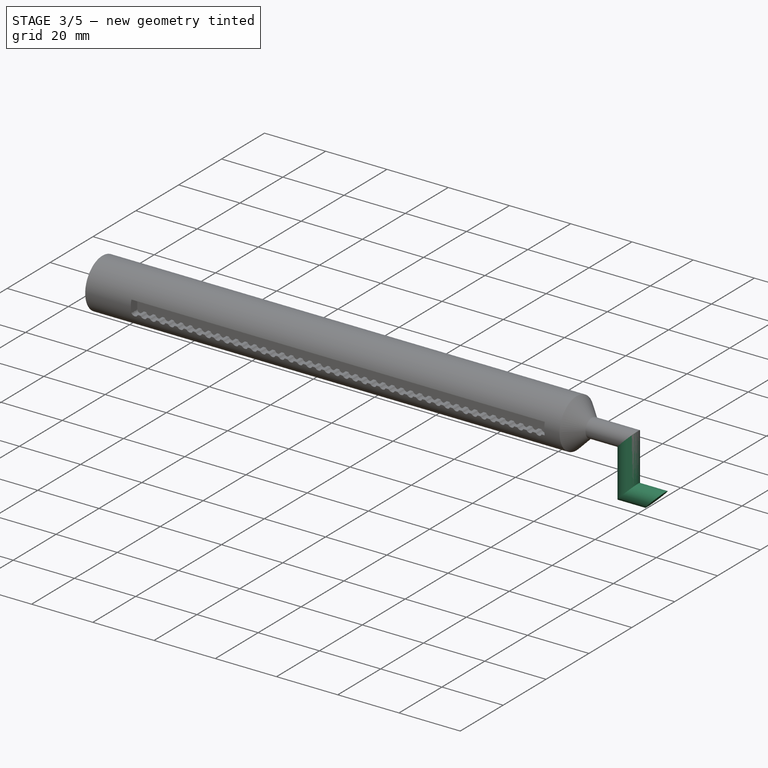
[diagram: stage 3 of 5 — iso view after this stage's code; geometry added in this stage tinted green]
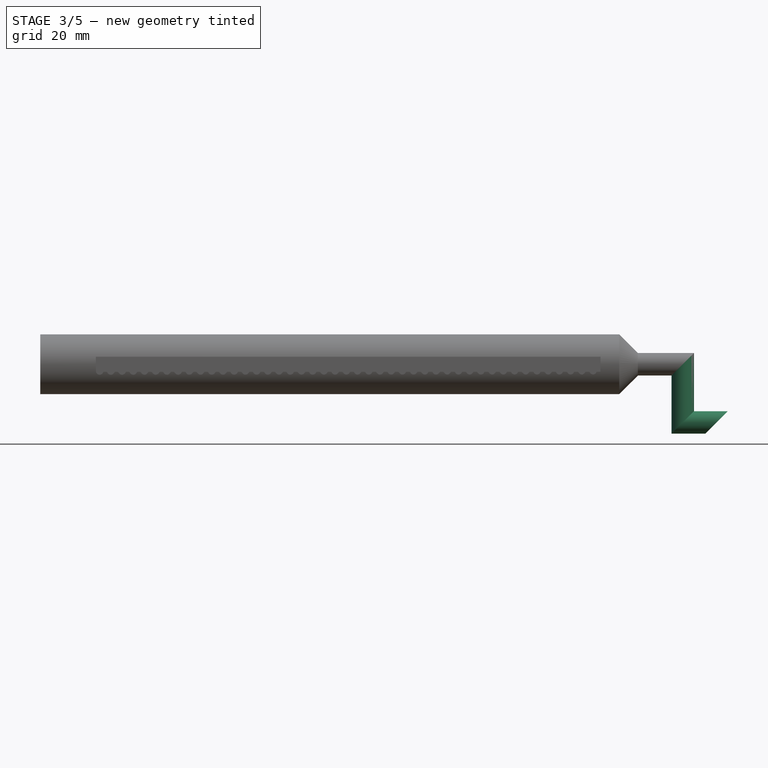
[diagram: stage 3 of 5 — front view after this stage's code; geometry added in this stage tinted green]
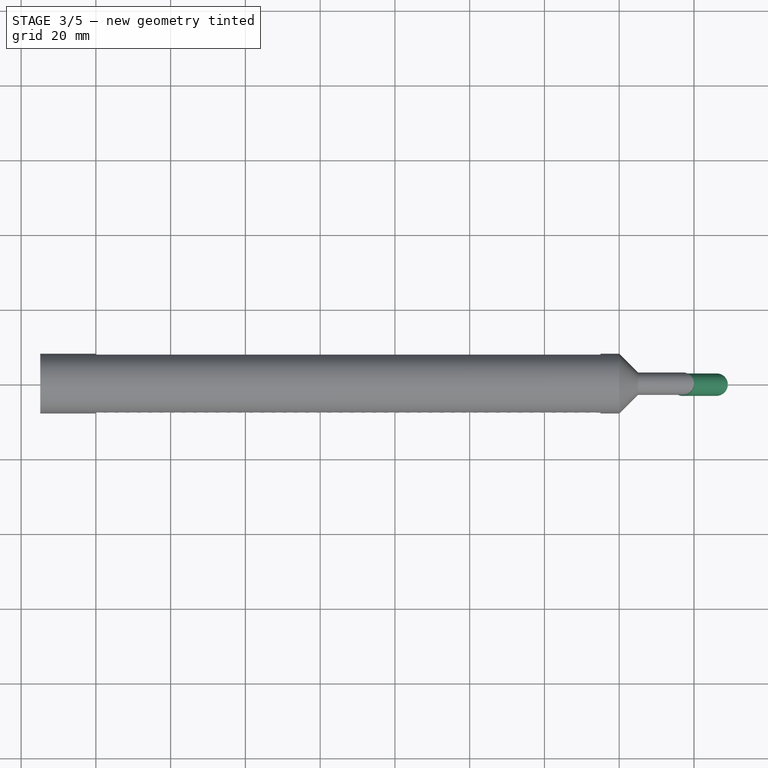
[diagram: stage 3 of 5 — top view after this stage's code; geometry added in this stage tinted green]
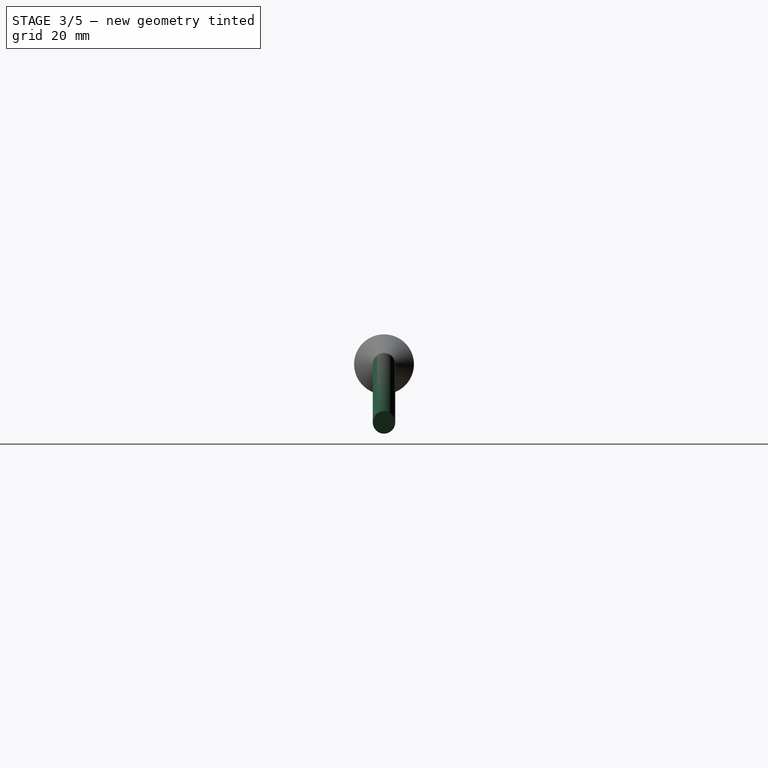
[diagram: stage 3 of 5 — right view after this stage's code; geometry added in this stage tinted green]
FEATURE [Sketcher::SketchObject] Sketch005
  ArcFitTolerance = 1e-06
  FullyConstrained = true
  MakeInternals = false
  MapMode = 5
  Placement = pos=(152.5,-6.62e-14,8.63e-14) rot=(1,0,0;1.5708rad)
  sketch-geometry (3):
    g0: LineSegment StartX=7.5 StartY=3 StartZ=0 EndX=7.5 EndY=-3 EndZ=0
    g1: LineSegment StartX=7.5 StartY=-3 StartZ=0 EndX=1.5 EndY=-3 EndZ=0
    g2: LineSegment StartX=1.5 StartY=-3 StartZ=0 EndX=7.5 EndY=3 EndZ=0
  constraints (8):
    c: Horizontal(g1)
    c: DistanceX(g0) = 7.5
    c: DistanceY(g0,g0) = 6
    c: Symmetric(g0,g0,g-1)
    c: Coincident(g0,g1)
    c: DistanceX(g1,g1) = 6
    c: Coincident(g2,g1)
    c: Coincident(g2,g0)
FEATURE [PartDesign::Pocket] Pocket002
  BaseFeature = -> Pocket001
  Direction = (0,1,-2e-16)
  Length = 5
  Length2 = 5
  Midplane = true
  Placement = pos=(0,0,0) rot=(1,1,1;2.0944rad)
  Profile = -> Sketch005
  ReferenceAxis = -> Sketch005 [N_Axis]
  Refine = true
  Suppressed = false
  Type = 1
FEATURE [PartDesign::Pad] Pad004
  BaseFeature = -> Pocket002
  Direction = (0,0,-0.71)
  Length = 11
  Length2 = 10
  Placement = pos=(0,0,0) rot=(1,1,1;2.0944rad)
  Profile = -> Pocket002 [Face195]
  Refine = true
  Suppressed = false
  Type = 0
  UseCustomVector = true
FEATURE [PartDesign::Pad] Pad005
  BaseFeature = -> Pad004
  Direction = (0.71,0,0)
  Length = 6.4
  Length2 = 10
  Placement = pos=(0,0,0) rot=(1,1,1;2.0944rad)
  Profile = -> Pad004 [Face198]
  Refine = true
  Suppressed = false
  Type = 0
  UseCustomVector = true
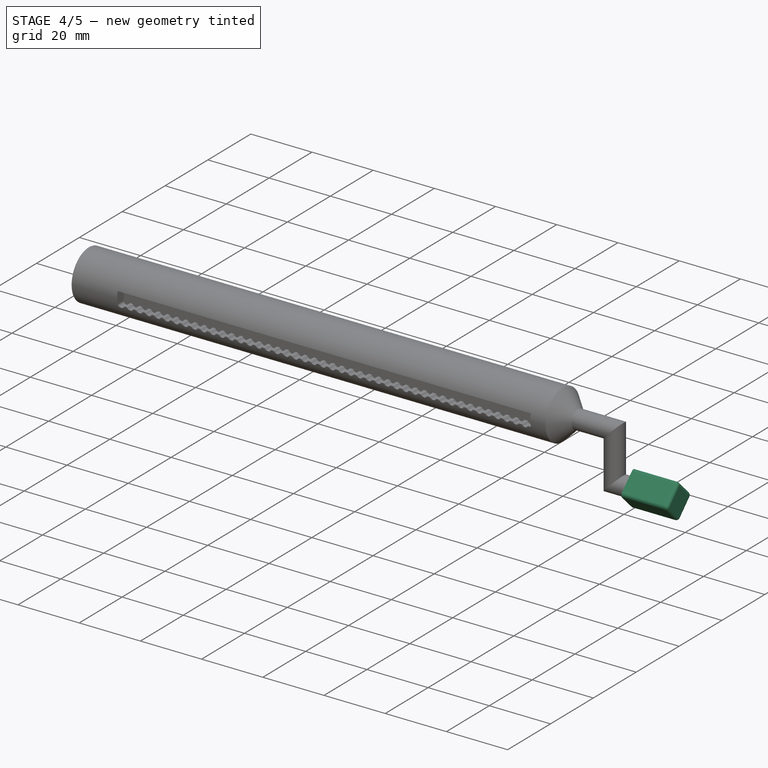
[diagram: stage 4 of 5 — iso view after this stage's code; geometry added in this stage tinted green]
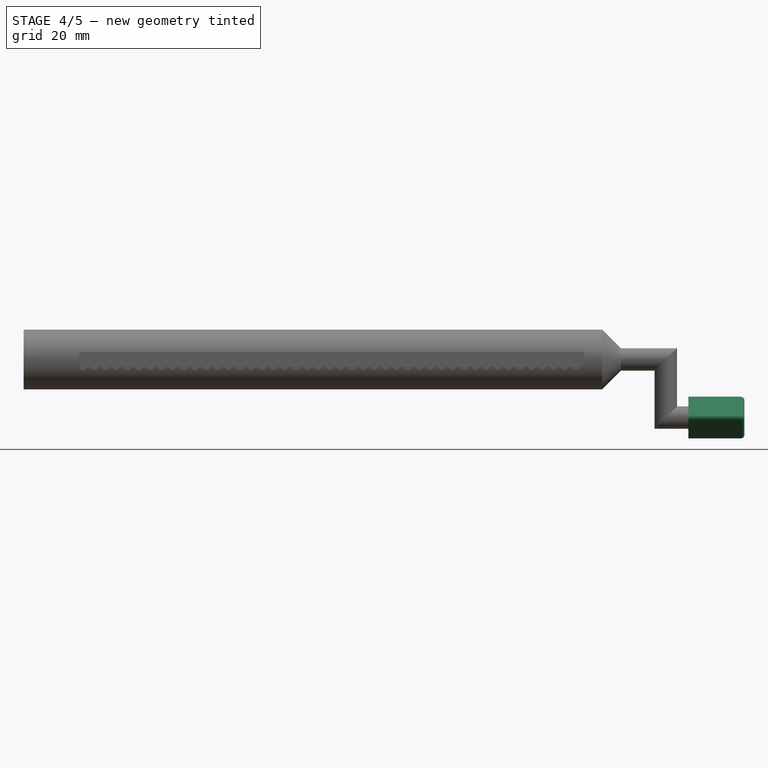
[diagram: stage 4 of 5 — front view after this stage's code; geometry added in this stage tinted green]
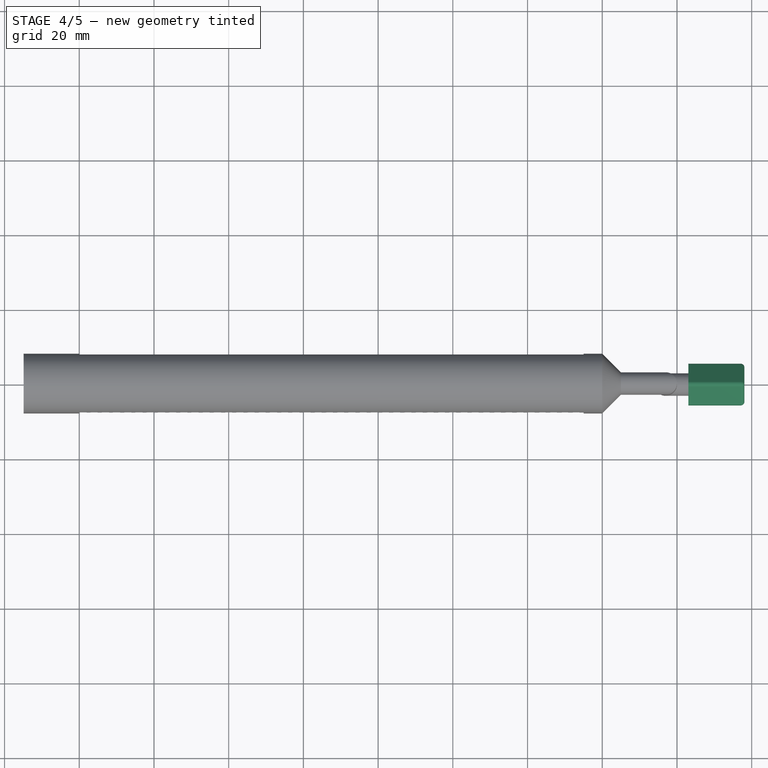
[diagram: stage 4 of 5 — top view after this stage's code; geometry added in this stage tinted green]
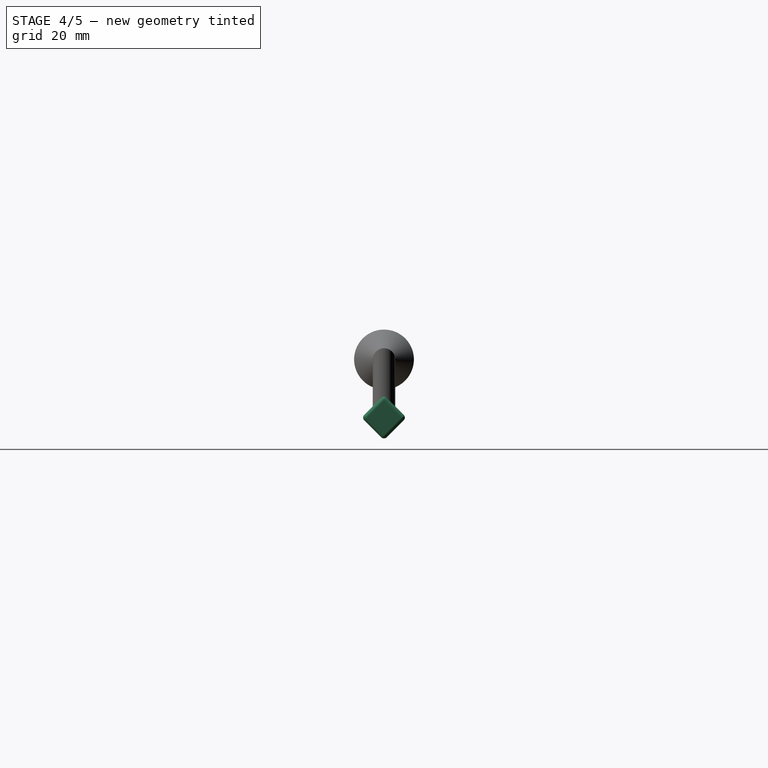
[diagram: stage 4 of 5 — right view after this stage's code; geometry added in this stage tinted green]
FEATURE [Sketcher::SketchObject] Sketch006
  ArcFitTolerance = 1e-06
  FullyConstrained = false
  MakeInternals = false
  MapMode = 5
  Placement = pos=(90.8037,-1.109e-13,-90.8037) rot=(0.281085,0.678598,0.678598;3.68962rad)
  sketch-geometry (3):
    g0: LineSegment StartX=0 StartY=110.66 StartZ=0 EndX=-4.24264 EndY=106.418 EndZ=0
    g1: LineSegment StartX=0 StartY=102.201 StartZ=0 EndX=-4.24264 EndY=106.418 EndZ=0
    g2: LineSegment StartX=0 StartY=110.66 StartZ=0 EndX=0 EndY=102.201 EndZ=0
  constraints (7):
    c: Distance(g0) = 6
    c: Angle(g-1,g0) = -2.35619
    c: PointOnObject(g0,g-2)
    c: PointOnObject(g1,g-2)
    c: Coincident(g1,g0)
    c: Coincident(g2,g0)
    c: Coincident(g2,g1)
FEATURE [PartDesign::Pad] Pad006
  BaseFeature = -> Pad005
  Direction = (1e-16,1,1e-16)
  Length = 6
  Length2 = 10
  Midplane = true
  Placement = pos=(0,0,0) rot=(1,1,1;2.0944rad)
  Profile = -> Sketch006
  ReferenceAxis = -> Sketch006 [N_Axis]
  Refine = true
  Suppressed = false
  Type = 0
FEATURE [Sketcher::SketchObject] Sketch007
  ArcFitTolerance = 1e-06
  FullyConstrained = true
  MakeInternals = false
  MapMode = 5
  Placement = pos=(169.052,-1.01e-14,-8.28682e-05) rot=(0.57735,0.57735,0.57735;2.0944rad)
  sketch-geometry (4):
    g0: LineSegment StartX=0 StartY=-9.55 StartZ=0 EndX=-6 EndY=-15.55 EndZ=0
    g1: LineSegment StartX=-6 StartY=-15.55 StartZ=0 EndX=0 EndY=-21.55 EndZ=0
    g2: LineSegment StartX=0 StartY=-9.55 StartZ=0 EndX=6.00001 EndY=-15.55 EndZ=0
    g3: LineSegment StartX=0 StartY=-21.55 StartZ=0 EndX=6.00001 EndY=-15.55 EndZ=0
  constraints (12):
    c: Angle(g-1,g0) = -2.35619
    c: PointOnObject(g0,g-2)
    c: DistanceY(g0) = -9.55
    c: DistanceX(g0) = -6
    c: Angle(g1,g0) = 1.5708
    c: Coincident(g0,g1)
    c: PointOnObject(g1,g-2)
    c: Angle(g-1,g2) = -0.785398
    c: Coincident(g2,g0)
    c: Horizontal(g2,g0)
    c: Coincident(g3,g1)
    c: Coincident(g3,g2)
FEATURE [PartDesign::Pad] Pad007
  BaseFeature = -> Pad006
  Direction = (1,-1e-16,-4.90192e-07)
  Length = 12
  Length2 = 10
  Midplane = true
  Placement = pos=(0,0,0) rot=(1,1,1;2.0944rad)
  Profile = -> Sketch007
  ReferenceAxis = -> Sketch007 [N_Axis]
  Refine = true
  Suppressed = false
  Type = 0
FEATURE [PartDesign::Pad] Pad008
  BaseFeature = -> Pad007
  Direction = (1,0,-4.90192e-07)
  Length = 3
  Length2 = 10
  Placement = pos=(0,0,0) rot=(1,1,1;2.0944rad)
  Profile = -> Pad007 [Face207]
  Refine = true
  Suppressed = false
  Type = 0
FEATURE [PartDesign::Fillet] Fillet
  Base = -> Pad008 [Edge651,Edge652,Edge649,Edge648,Edge650,Edge646,Edge645,Edge647]
  BaseFeature = -> Pad008
  Placement = pos=(0,0,0) rot=(1,1,1;2.0944rad)
  Radius = 1
  Refine = true
  SupportTransform = false
  Suppressed = false
  UseAllEdges = false
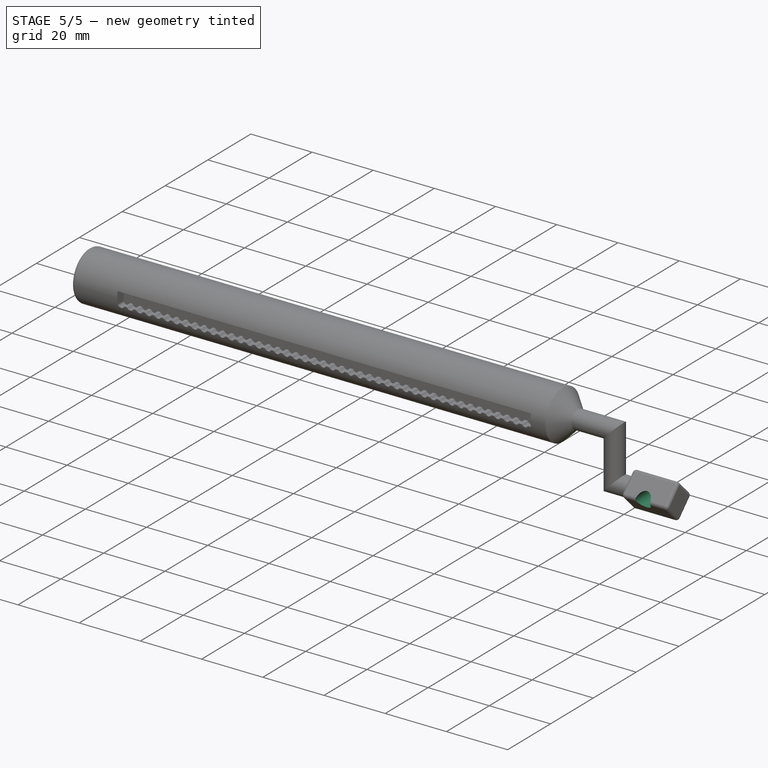
[diagram: stage 5 of 5 — iso view after this stage's code; geometry added in this stage tinted green]
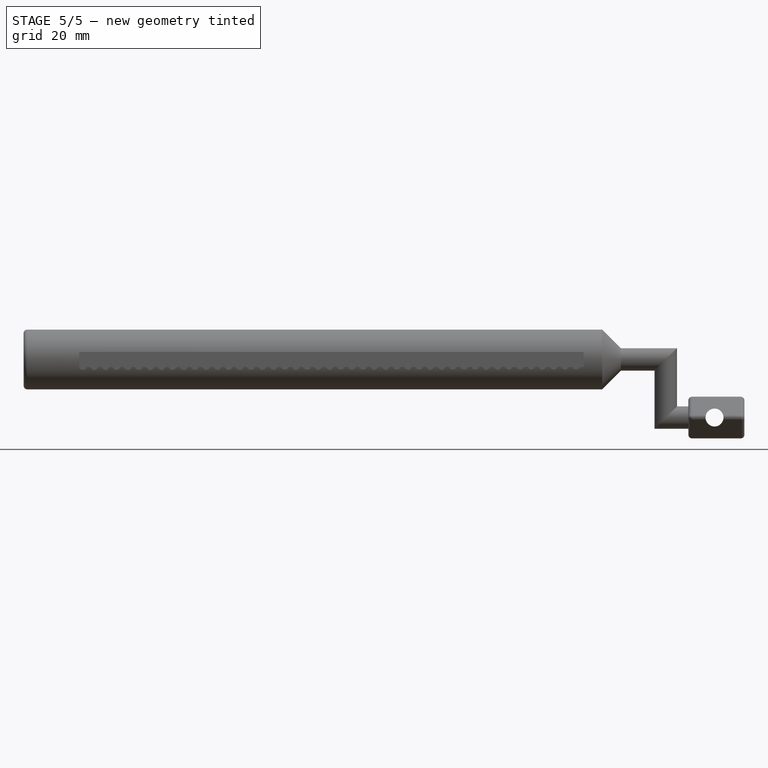
[diagram: stage 5 of 5 — front view after this stage's code; geometry added in this stage tinted green]
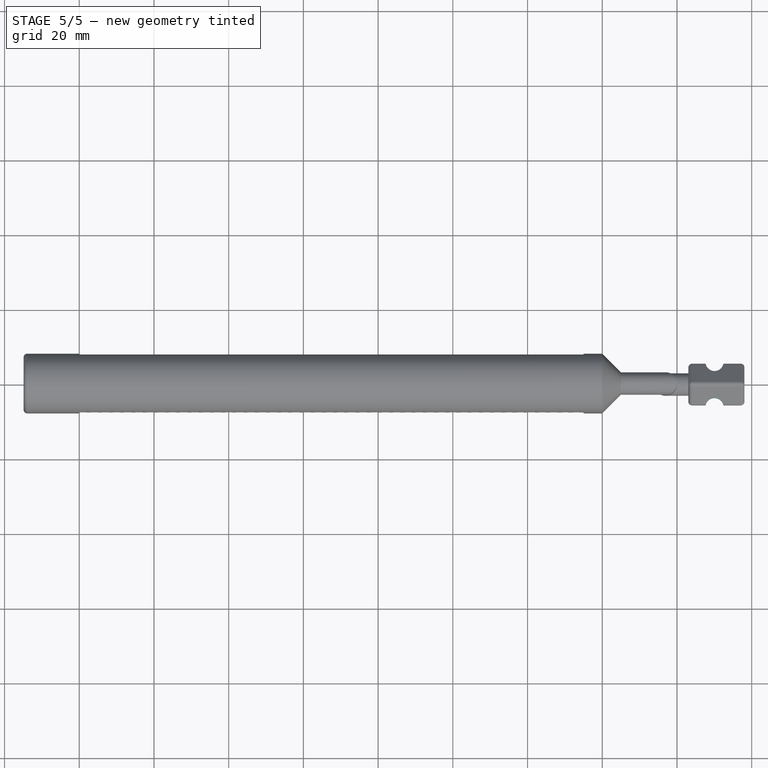
[diagram: stage 5 of 5 — top view after this stage's code; geometry added in this stage tinted green]
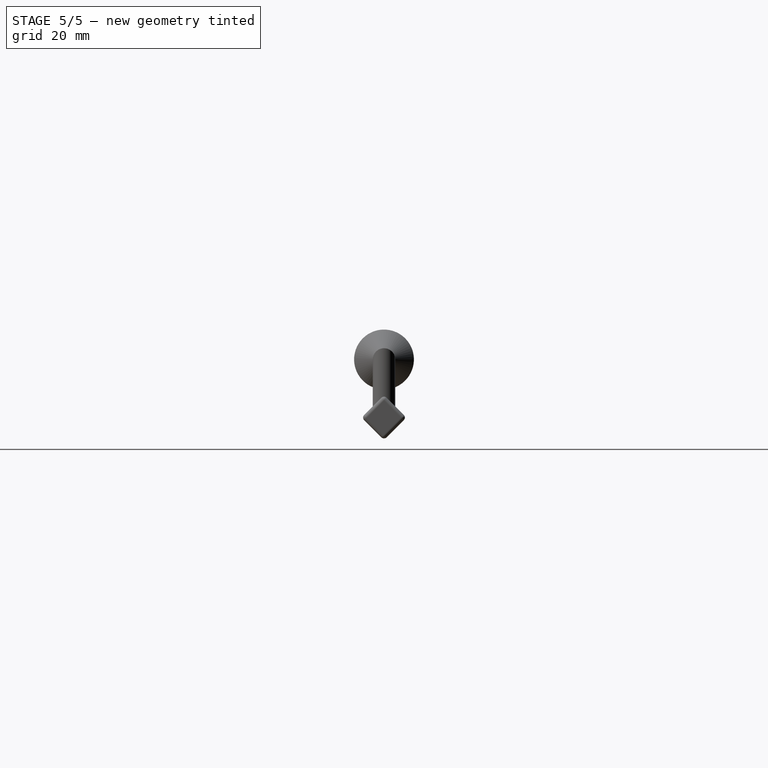
[diagram: stage 5 of 5 — right view after this stage's code; geometry added in this stage tinted green]
FEATURE [Sketcher::SketchObject] Sketch008
  ArcFitTolerance = 1e-06
  FullyConstrained = true
  MakeInternals = false
  MapMode = 5
  Placement = pos=(170.052,-5.4861,-15.5501) rot=(-0.57735,-0.57735,-0.57735;2.0944rad)
  sketch-geometry (1):
    g0: Circle CenterX=0 CenterY=0 CenterZ=0 NormalX=0 NormalY=0 NormalZ=1 AngleXU=0 Radius=2.4
  constraints (2):
    c: Coincident(g-1,g0)
    c: Diameter(g0) = 4.8
FEATURE [PartDesign::Pocket] Pocket003
  BaseFeature = -> Fillet
  Direction = (-2.376e-13,-1,-4.90192e-07)
  Length = 5
  Length2 = 5
  Midplane = true
  Placement = pos=(0,0,0) rot=(1,1,1;2.0944rad)
  Profile = -> Sketch008
  ReferenceAxis = -> Sketch008 [N_Axis]
  Refine = true
  Suppressed = false
  Type = 1
FEATURE [PartDesign::Fillet] Fillet001
  Base = -> Pocket003 [Edge1]
  BaseFeature = -> Pocket003
  Placement = pos=(0,0,0) rot=(1,1,1;2.0944rad)
  Radius = 1
  Refine = true
  SupportTransform = false
  Suppressed = false
  UseAllEdges = false
FEATURE [PartDesign::Fillet] Fillet002
  Base = -> Fillet001 [Edge111]
  BaseFeature = -> Fillet001
  Placement = pos=(0,0,0) rot=(1,1,1;2.0944rad)
  Radius = 1
  Refine = true
  SupportTransform = false
  Suppressed = false
  UseAllEdges = false
FEATURE [PartDesign::Body] Body
  AllowCompound = false
  Group = -> [Sketch,Pad,Sketch001,Pocket,Sketch002,Pad001,Sketch003,Pad002,Chamfer,Pad003,Sketch004,Pocket001,Sketch005,Pocket002,Pad004,Pad005,Sketch006,Pad006,Sketch007,Pad007,Pad008,Fillet,Sketch008,Pocket003,Fillet001,Fillet002]
  Origin = -> Origin
  Tip = -> Fillet002
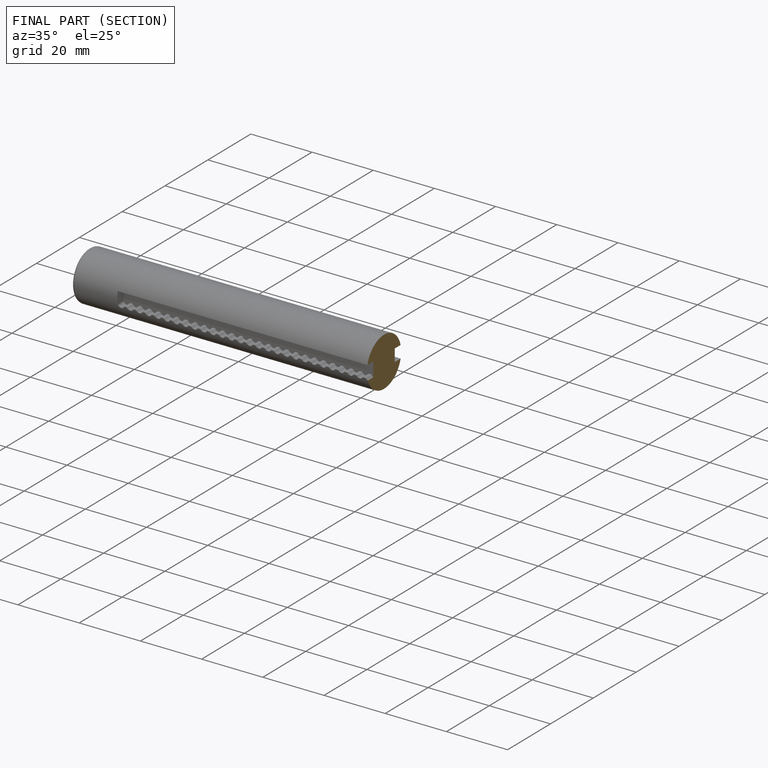
[diagram: finished part — half-section view (interior)]
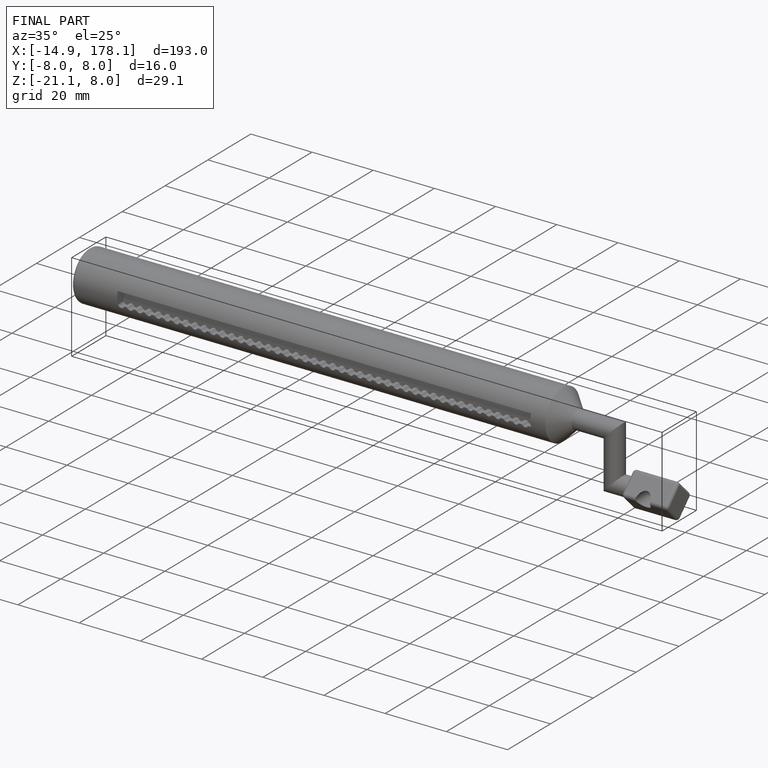
[diagram: finished part — iso view with bounding-box wireframe]
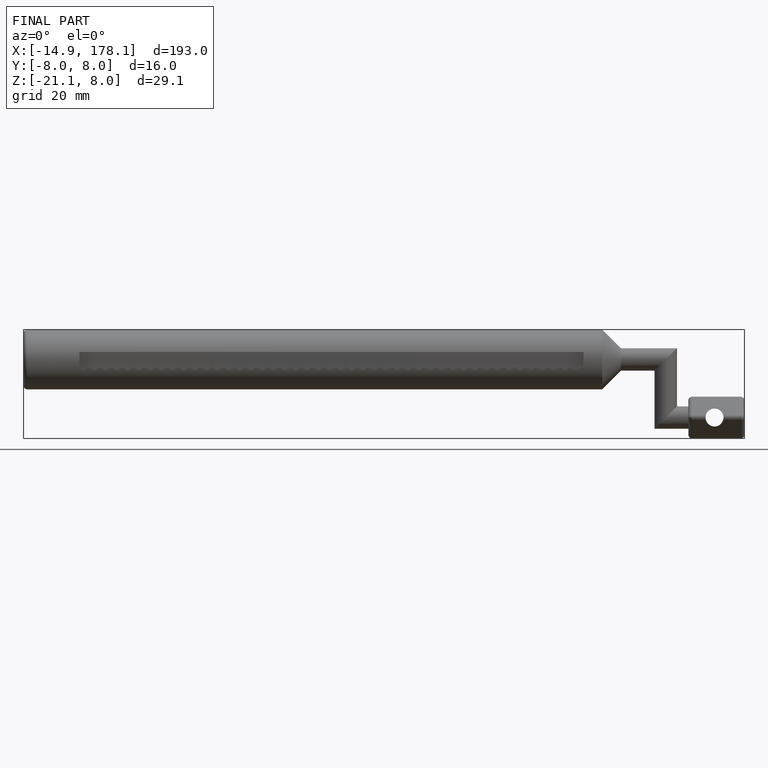
[diagram: finished part — front view with bounding-box wireframe]
